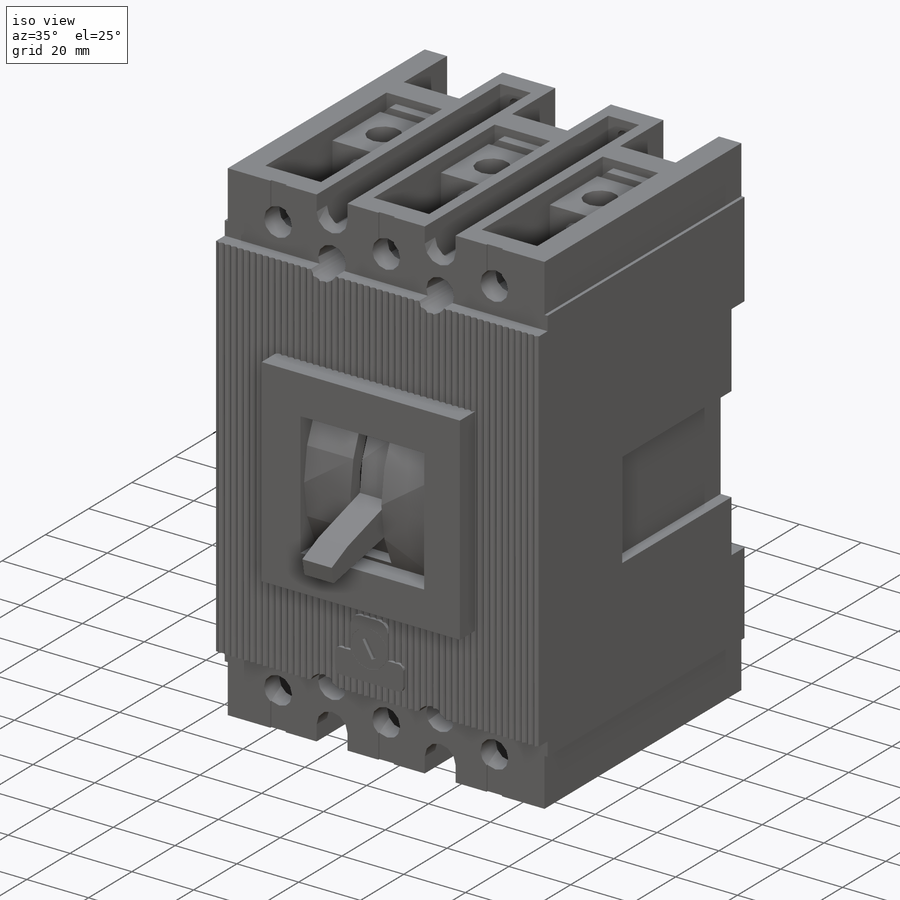
[diagram: iso view]
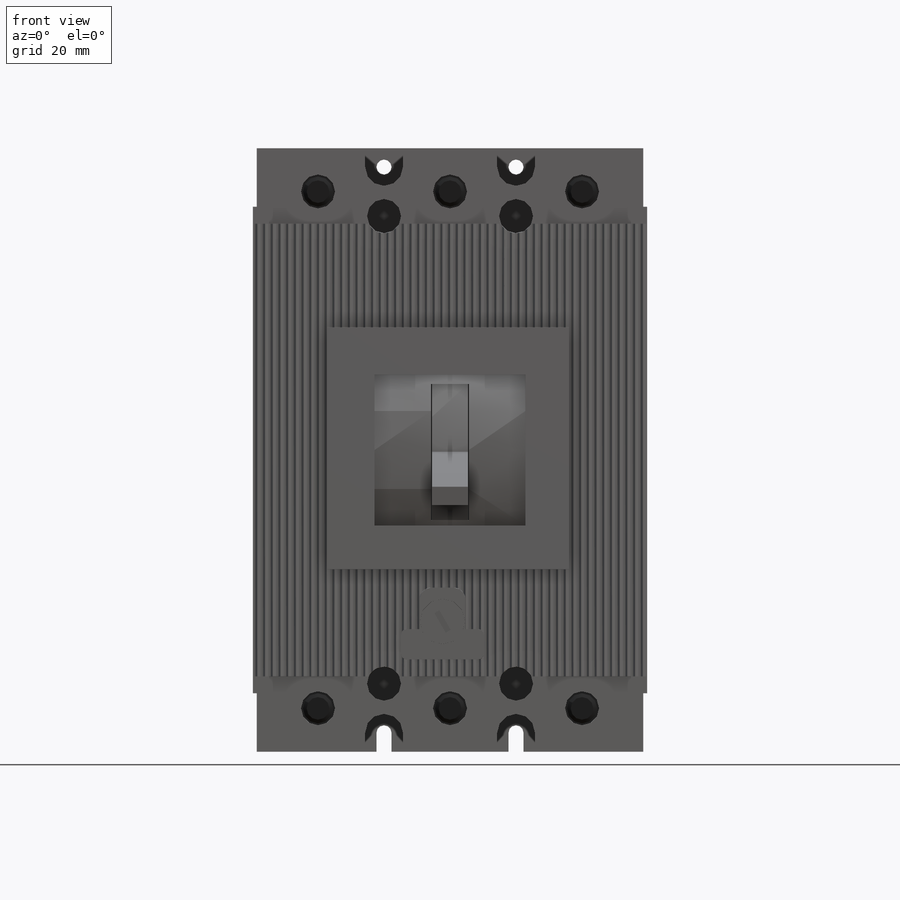
[diagram: front view]
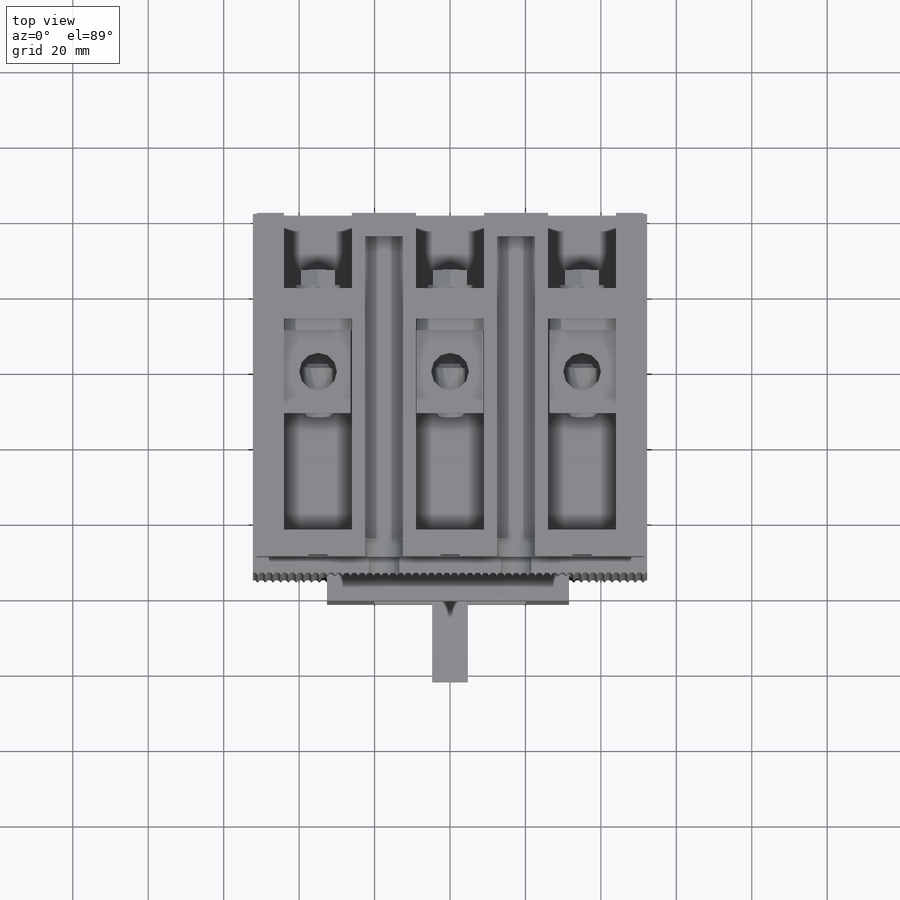
[diagram: top view]
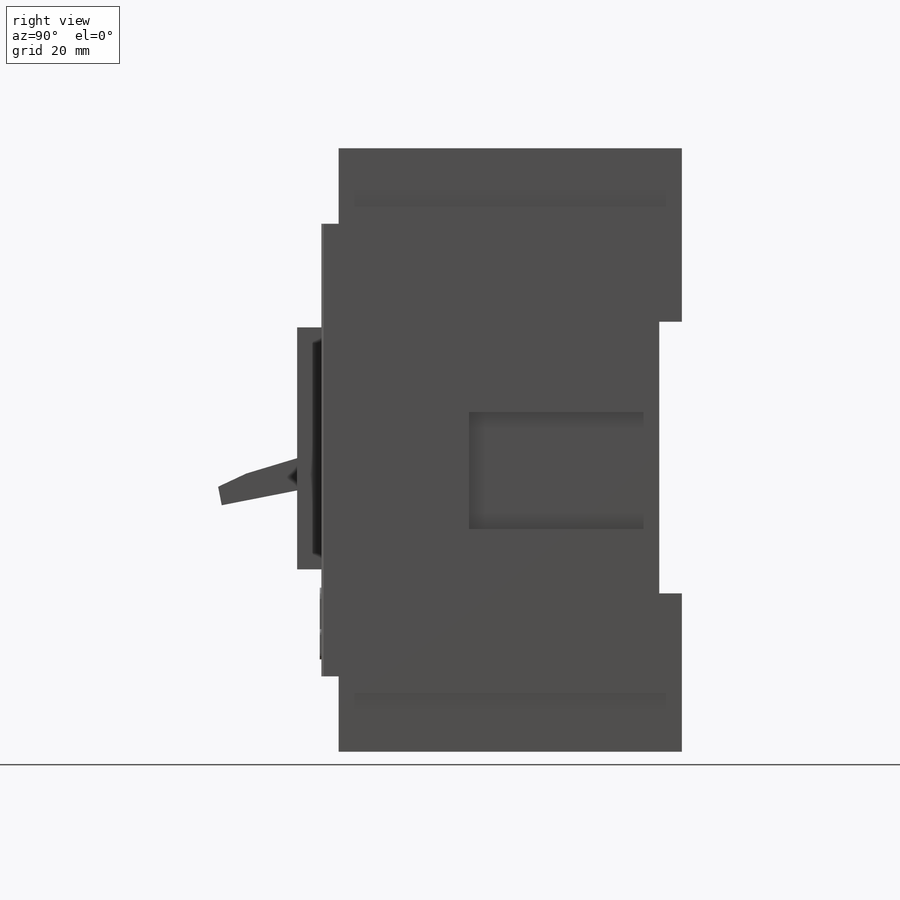
[diagram: right view]
SOLIDWORKS PART (.sldprt)
format: sldprt  version: not decoded by parser v0  size: 2,492,416 bytes
history: native  units: mm
features: sketch x39, cut_extrude x27, extrude x12, material x1, chamfer x1 (+14 scaffold rows collapsed)
feature tree (94):
  scaffold x14  (default folders/planes/origin — collapsed)
  material  "Material <not specified>"
  sketch  "Sketch1"  dims[D1=52.25mm D2=104.5mm D3=80.0mm D4=160.0mm]
  extrude  "Base-Extrude"  Depth=95mm
  sketch  "Sketch2"  dims[c1.D3=0.3mm c1.D7=0.5mm c1.D8=0.5mm c1.D9=0.2mm c1.D1=1.0mm c1.D2=~2.338058mm c2.D2=60.0deg c2.D3=~0.69282mm c2.D4=0.55mm c2.D5=1.5mm c2.D6=0.5mm c3.D2=~0.45359mm c4.D2=60.0deg c4.D9=~0.966025mm]
  extrude  "Boss-Extrude1"  Depth=160mm
  sketch  "Sketch3"  dims[c1.D1=1.0mm c1.D2=2.0mm c1.D3=15.5mm c1.D4=15.5mm c1.D5=15.5mm c2.D4=1.0mm c2.D5=1.0mm c2.D6=1.0mm]
  cut_extrude  "Cut-Extrude1"  Depth=160mm
  sketch  "Sketch4"  dims[D1=32.5mm D2=~64.149438mm]
  extrude  "Boss-Extrude2"  Depth=102mm
  sketch  "Sketch5"  dims[c1.D5=40.0mm c1.D4=72.0mm c1.D1=40.0mm c1.D2=20.0mm c1.D3=~64.149438mm c2.D3=90.0deg c3.D3=7.0mm c3.D4=40.0mm c3.D5=40.0mm c3.D1=40.0mm c4.D5=7.0mm]
  cut_extrude  "Cut-Extrude2"  Depth=20mm
  sketch  "Sketch6"  dims[D1=80.0mm D2=80.0mm D3=55.0mm D4=110.0mm D5=60.0mm D6=60.0mm]
  cut_extrude  "Cut-Extrude3"  Depth=11mm
  sketch  "Sketch7"  dims[D1=13.0mm D2=15.0mm D3=5.0mm D4=10.0mm]
  cut_extrude  "Cut-Extrude4"  Depth=11mm
  sketch  "Sketch8"  dims[c1.D2=72.0mm c1.D1=40.0mm c2.D2=~80.187709mm c3.D2=15.0deg c3.D3=5.0mm c3.D4=8.0mm c3.D5=9.0mm c3.D6=7.0mm c3.D7=60.0mm c3.D8=20.0mm c4.D2=17.0mm c4.D7=~26.248809mm]
  extrude  "Boss-Extrude3"  Depth=4.75mm
  sketch  "Sketch9"  dims[D4=9.0mm D6=9.0mm D1=35.0mm D2=17.5mm D3=62.0mm D5=62.0mm]
  cut_extrude  "Cut-Extrude5"  Depth=46mm
  sketch  "Sketch10"  dims[D1=8.0mm D2=35.0mm D3=17.5mm D4=62.0mm D5=124.0mm]
  cut_extrude  "Cut-Extrude6"  Depth=46mm
  sketch  "Sketch11"  dims[D1=10.0mm D2=17.5mm D3=35.0mm D4=75.0mm D5=75.0mm D6=8.0mm D7=8.0mm]
  cut_extrude  "Cut-Extrude7"  Depth=95.8mm
  sketch  "Sketch12"  dims[D1=9.0mm D2=35.0mm D3=35.0mm D4=68.5mm D5=68.5mm]
  cut_extrude  "Cut-Extrude8"  Depth=95.8mm
  sketch  "Sketch13"  dims[D1=28.0mm D2=56.0mm D3=18.0mm D4=9.0mm D5=17.0mm D6=17.0mm]
  cut_extrude  "Cut-Extrude9"  Depth=19mm
  sketch  "Sketch14"  dims[D1=41.0mm D2=42.0mm D3=18.0mm D4=9.0mm D5=17.0mm D6=17.0mm]
  cut_extrude  "Cut-Extrude10"  Depth=20mm
  sketch  "Sketch15"  dims[c1.D1=9.0mm c1.D6=4.0mm c1.D10=8.0mm c2.D1=6.0mm c2.D2=14.5mm c2.D3=14.5mm c2.D4=24.0mm c2.D5=17.0mm c2.D7=3.0mm c2.D8=3.0mm c2.D9=19.0mm c2.D11=13.0mm c2.D12=150.0mm]
  cut_extrude  "Cut-Extrude11"  Depth=20mm
  sketch  "Sketch16"  dims[D1=46.0mm D2=72.0mm]
  cut_extrude  "Cut-Extrude12"  Depth=6mm
  sketch  "Sketch17"  dims[D1=5.0mm D2=5.0mm D3=9.0mm D4=9.0mm D5=17.0mm D6=17.0mm D7=18.0mm D8=18.0mm D9=37.0mm D10=12.0mm D11=6.0mm D12=6.0mm]
  cut_extrude  "Cut-Extrude13"  Depth=20mm
  sketch  "Sketch18"  dims[D1=28.0mm D2=56.0mm]
  cut_extrude  "Cut-Extrude14"  Depth=19mm
  sketch  "Sketch19"  dims[c1.D1=80.0mm c1.D2=25.0mm c1.D3=12.5mm c1.D4=10.0mm c1.D5=10.0mm c2.D4=3.0mm c2.D2=3.0mm c2.D6=3.0mm c2.D7=0.0mm c2.D8=3.0mm c2.D9=3.0mm c2.D10=3.0mm]
  cut_extrude  "Cut-Extrude15"  Depth=12mm
  sketch  "Sketch20"
  cut_extrude  "Cut-Extrude16"  Depth=10mm
  sketch  "Sketch21"  dims[D1=80.0mm D2=25.0mm D3=12.5mm D4=10.0mm D5=10.0mm D6=3.0mm D7=3.0mm D8=3.0mm D9=3.0mm]
  cut_extrude  "Cut-Extrude17"  Depth=12mm
  sketch  "Sketch22"
  cut_extrude  "Cut-Extrude18"  Depth=10mm
  sketch  "Sketch23"  dims[c1.D1=12.1mm c1.D8=1.5mm c1.D9=3.0mm c1.D2=9.0mm c1.D3=10.0mm c1.D4=8.0mm c1.D5=11.0mm c1.D6=22.0mm c2.D1=6.05mm c2.D2=12.1mm c2.D3=9.0mm c2.D5=10.0mm c2.D7=11.0mm c3.D1=13.0mm c3.D3=19.0mm c3.D5=13.0mm c3.D7=4.95mm]
  extrude  "Boss-Extrude4"  Depth=5mm
  sketch  "Sketch24"  dims[D3=12.05mm D1=2.0mm D2=23.0mm]
  cut_extrude  "Cut-Extrude19"  Depth=20mm
  sketch  "Sketch25"  dims[D3=12.0mm D1=23.0mm D2=2.0mm]
  extrude  "Boss-Extrude5"  Depth=5mm
  sketch  "Sketch26"  dims[c1.D1=6.0mm c1.D2=6.0mm c2.D2=30.0deg c2.D1=0.75mm c3.D2=6.0mm c4.D2=30.0deg c4.D3=1.5mm c4.D4=6.0mm c4.D5=3.0mm c5.D3=0.75mm c5.D4=0.75mm]
  cut_extrude  "Cut-Extrude20"  Depth=1mm
  sketch  "Sketch27"  dims[D1=17.8mm D2=8.75mm D3=77.5mm D4=155.0mm D5=17.4mm D6=17.8mm D7=17.4mm D8=17.8mm D11=3.0mm D12=3.0mm D13=3.0mm D14=3.0mm D15=3.0mm D16=3.0mm D17=3.0mm D18=3.0mm D19=3.0mm D20=3.0mm D21=3.0mm D22=3.0mm]
  extrude  "Boss-Extrude6"  Depth=3mm
  sketch  "Sketch28"  dims[D1=4.5mm D2=13.5mm D3=17.7mm D4=8.85mm D5=17.5mm D6=17.5mm]
  extrude  "Boss-Extrude7"  Depth=22mm
  sketch  "Sketch29"  dims[D1=10.0mm D2=42.0mm D3=35.0mm D4=35.0mm]
  cut_extrude  "Cut-Extrude21"  Depth=13.5mm
  sketch  "Sketch30"  dims[D2=10.0mm D1=42.0mm D3=35.0mm D4=35.0mm]
  cut_extrude  "Cut-Extrude22"  Depth=13.5mm
  sketch  "Sketch31"  dims[D1=8.0mm]
  cut_extrude  "Cut-Extrude23"  Depth=10mm
  sketch  "Sketch32"  dims[D1=8.0mm]
  extrude  "Boss-Extrude8"  Depth=1mm
  chamfer  "Chamfer1"  Distance=1mm Angle=45deg
  sketch  "Sketch33"  dims[c1.D1=4.0mm c1.D2=4.0mm c2.D2=90.0deg]
  cut_extrude  "Cut-Extrude24"  Depth=4mm
  sketch  "Sketch34"  dims[D1=59.0mm D2=31.0mm D3=56.5mm]
  cut_extrude  "Cut-Extrude25"  Depth=3.5mm
  sketch  "Sketch35"  dims[D1=67.0mm D2=7.0mm D3=56.5mm]
  cut_extrude  "Cut-Extrude26"  Depth=3.5mm
  sketch  "Sketch36"  dims[D1=2.5mm D2=5.0mm D3=70.0mm D4=30.0mm D5=30.0mm D6=10.0mm]
  cut_extrude  "Cut-Extrude27"  Depth=0.5mm
  sketch  "Sketch37"  dims[D1=8.0mm D2=90.0deg]
  extrude  "Boss-Extrude9"  Depth=8mm
  sketch  "Sketch38"  dims[c1.D1=12.0mm c1.D2=90.0deg c2.D2=68.5mm]
  extrude  "Boss-Extrude10"  Depth=1mm
  sketch  "Sketch40"  dims[c1.D1=9.0mm c1.D2=90.0deg c2.D2=68.5mm]
  extrude  "Boss-Extrude11"  Depth=4mm
decode coverage: 77 of 79 modeling features carry decoded parameters
note: ~ marks probable driven/reference dimensions
note: suppression state not decoded; provenance and decode notes live in map.json
